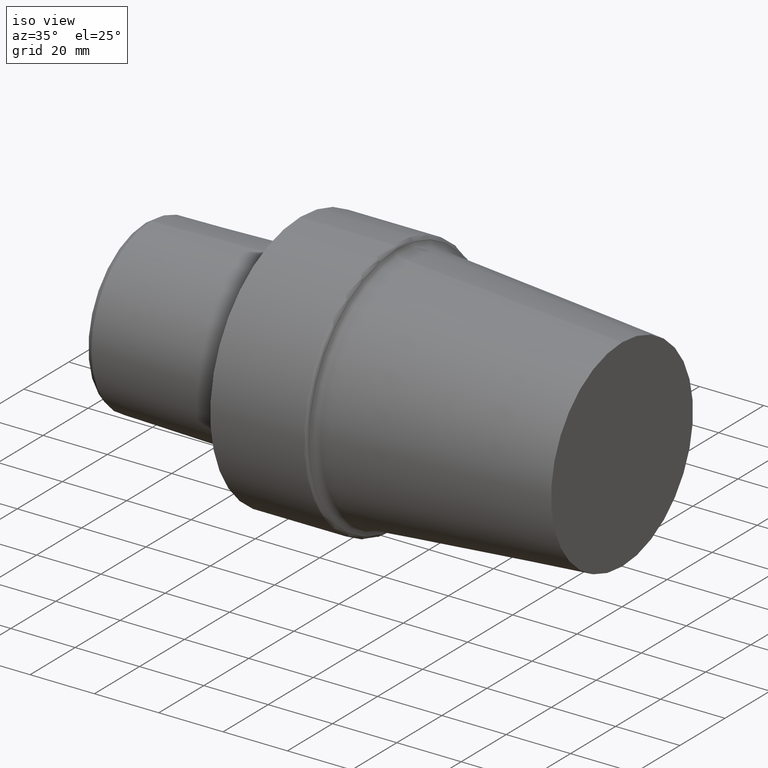
[diagram: clean part render]
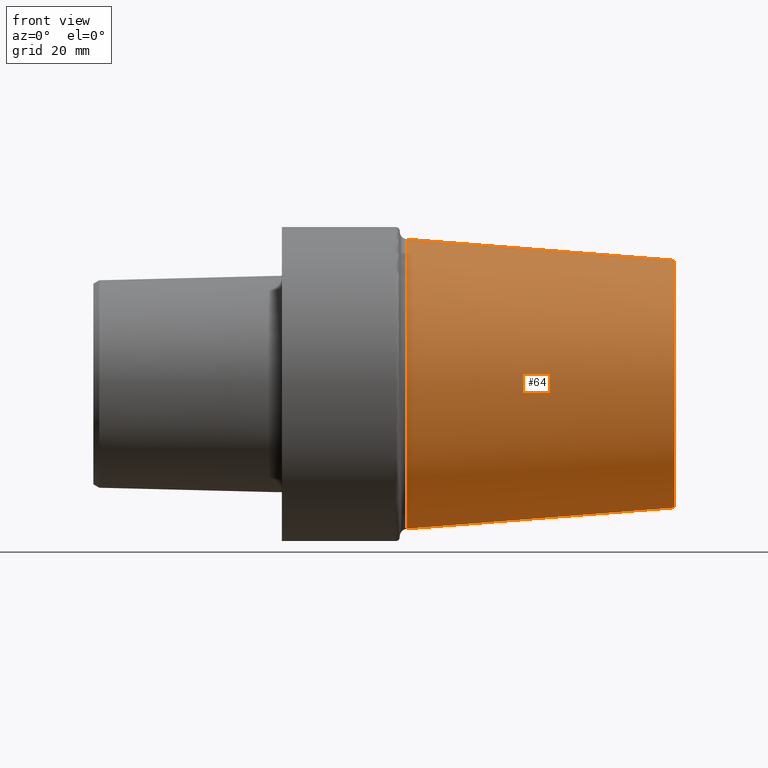
[diagram: tour spotlight — one face highlighted and labeled with its STEP entity id]
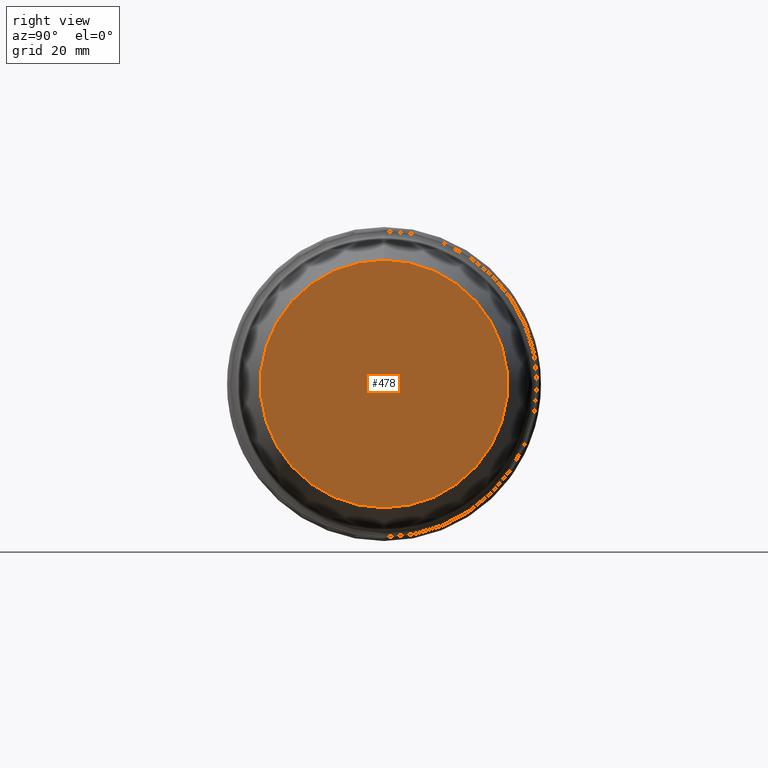
[diagram: tour spotlight — one face highlighted and labeled with its STEP entity id]
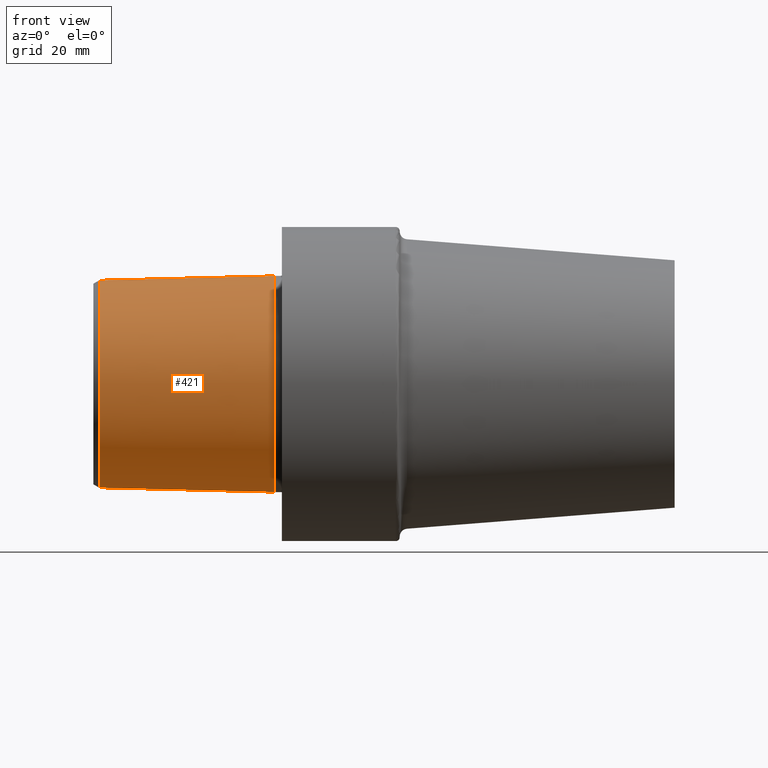
[diagram: tour spotlight — one face highlighted and labeled with its STEP entity id]
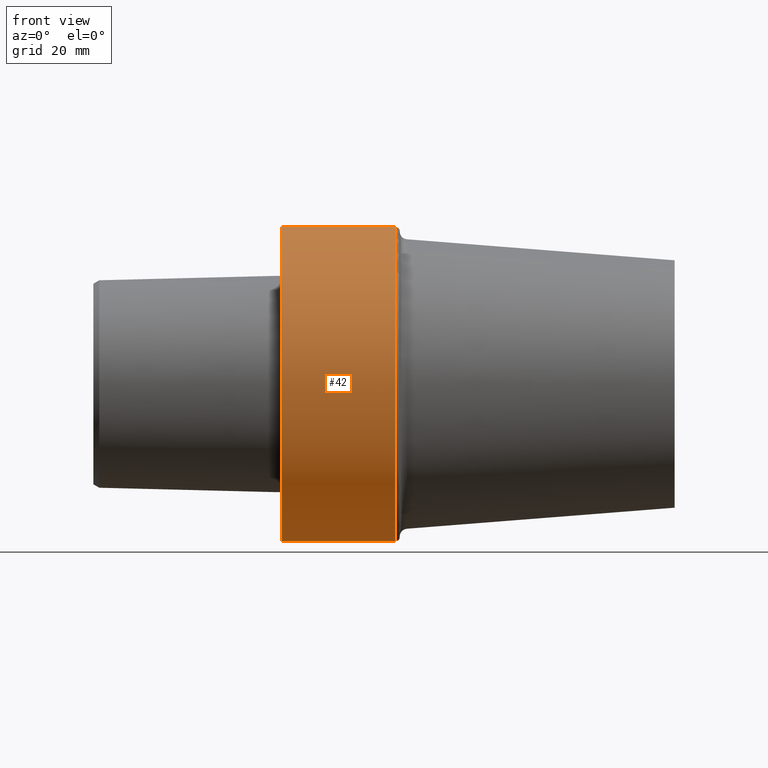
[diagram: tour spotlight — one face highlighted and labeled with its STEP entity id]
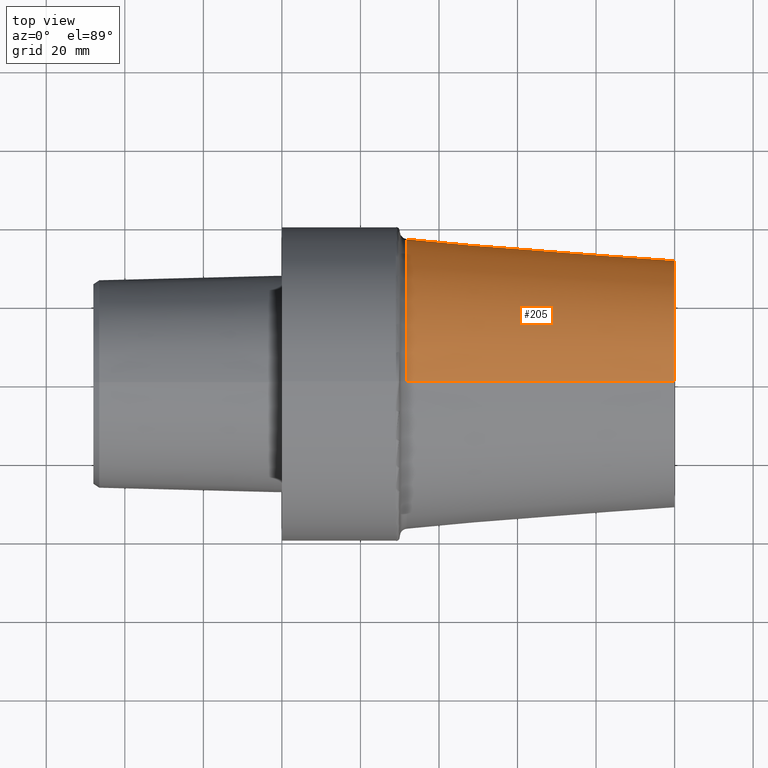
[diagram: tour spotlight — one face highlighted and labeled with its STEP entity id]
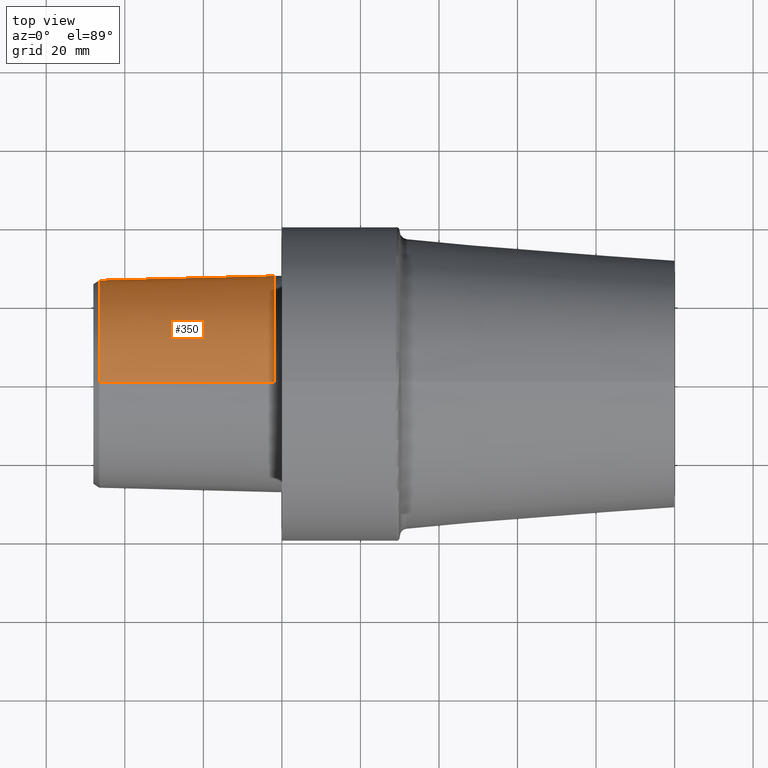
[diagram: tour spotlight — one face highlighted and labeled with its STEP entity id]
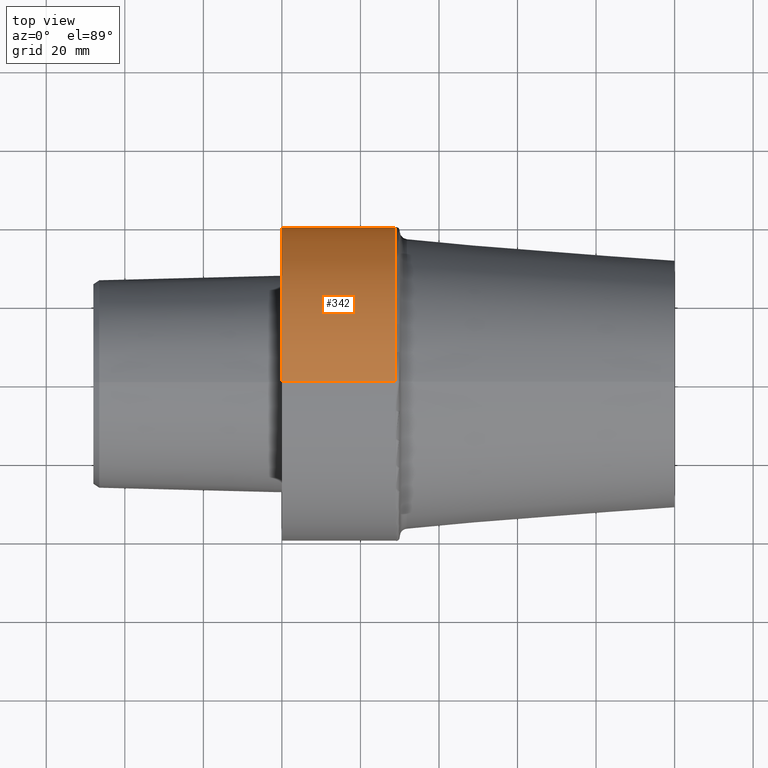
[diagram: tour spotlight — one face highlighted and labeled with its STEP entity id]
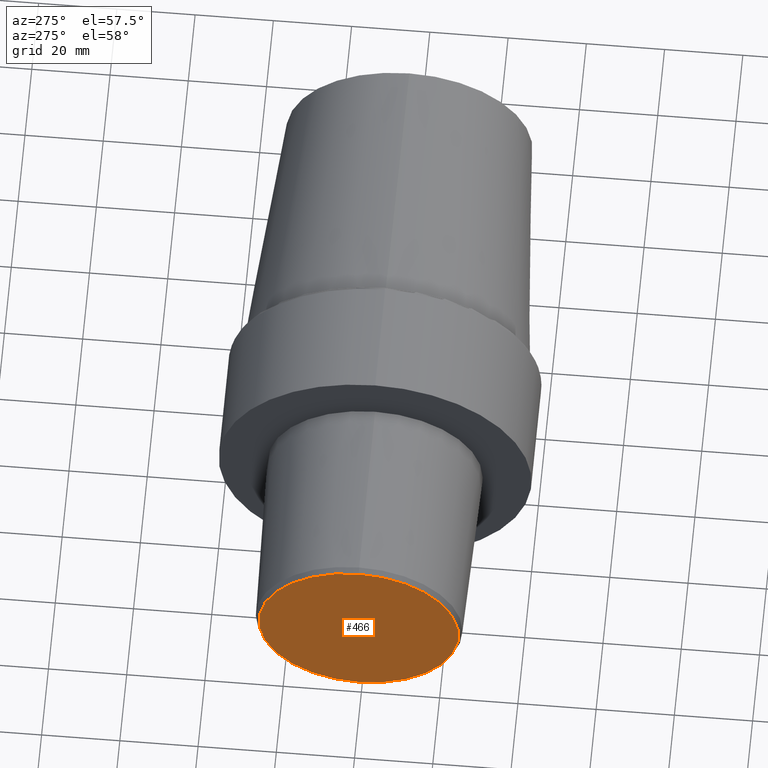
[diagram: tour spotlight — one face highlighted and labeled with its STEP entity id]
A machine part: a face-by-face anatomy tour. The part has 18 B-rep faces; the first image is the clean iso view, then the 8 largest visible faces are spotlighted one at a time (largest first), each with its STEP entity span.

Face 1 — front view, entity #64. In plain terms, the highlighted conical surface has half-angle 4.493 deg.
Definition (entity closure, byte-faithful):
#3 = CARTESIAN_POINT ( 'NONE',  ( 99.99999992069133725, 0.000000000000000000, 0.000000000000000000 ) ) ;
#17 = CARTESIAN_POINT ( 'NONE',  ( 99.99999992069133725, 3.857637413950260996E-15, -31.49999997253168615 ) ) ;
#23 = DIRECTION ( 'NONE',  ( -1.000000000000000000, 0.000000000000000000, 0.000000000000000000 ) ) ;
#37 = VECTOR ( 'NONE', #185, 1000.000000000000227 ) ;
#60 = DIRECTION ( 'NONE',  ( 0.000000000000000000, 0.000000000000000000, 1.000000000000000000 ) ) ;
#63 = CARTESIAN_POINT ( 'NONE',  ( 99.99999992069133725, 0.000000000000000000, 31.49999997253168615 ) ) ;
#64 = ADVANCED_FACE ( 'NONE', ( #188 ), #266, .T. ) ;
#65 = DIRECTION ( 'NONE',  ( -1.000000000000000000, 0.000000000000000000, 0.000000000000000000 ) ) ;
#70 = VERTEX_POINT ( 'NONE', #305 ) ;
#72 = EDGE_CURVE ( 'NONE', #91, #70, #87, .T. ) ;
#82 = ORIENTED_EDGE ( 'NONE', *, *, #72, .F. ) ;
#87 = CIRCLE ( 'NONE', #517, 36.85516611706941603 ) ;
#91 = VERTEX_POINT ( 'NONE', #181 ) ;
#106 = LINE ( 'NONE', #63, #37 ) ;
#111 = CIRCLE ( 'NONE', #258, 31.49999997253168615 ) ;
#113 = EDGE_CURVE ( 'NONE', #196, #70, #106, .T. ) ;
#117 = DIRECTION ( 'NONE',  ( -1.000000000000000000, 0.000000000000000000, 0.000000000000000000 ) ) ;
#124 = ORIENTED_EDGE ( 'NONE', *, *, #113, .T. ) ;
#145 = EDGE_CURVE ( 'NONE', #441, #196, #111, .T. ) ;
#148 = CARTESIAN_POINT ( 'NONE',  ( 31.84333994021121228, 0.000000000000000000, 0.000000000000000000 ) ) ;
#159 = DIRECTION ( 'NONE',  ( 0.000000000000000000, 0.000000000000000000, 1.000000000000000000 ) ) ;
#162 = CARTESIAN_POINT ( 'NONE',  ( 99.99999992069133725, 0.000000000000000000, 31.49999997253168615 ) ) ;
#181 = CARTESIAN_POINT ( 'NONE',  ( 31.84333994021121228, 4.513456121731304833E-15, -36.85516611706941603 ) ) ;
#185 = DIRECTION ( 'NONE',  ( -0.9969274840685427019, 0.000000000000000000, 0.07833001665240088562 ) ) ;
#188 = FACE_OUTER_BOUND ( 'NONE', #207, .T. ) ;
#196 = VERTEX_POINT ( 'NONE', #162 ) ;
#207 = EDGE_LOOP ( 'NONE', ( #445, #247, #124, #82 ) ) ;
#247 = ORIENTED_EDGE ( 'NONE', *, *, #145, .T. ) ;
#258 = AXIS2_PLACEMENT_3D ( 'NONE', #3, #117, #159 ) ;
#260 = LINE ( 'NONE', #17, #440 ) ;
#266 = CONICAL_SURFACE ( 'NONE', #346, 31.49999997253168615, 0.07841033878551205427 ) ;
#301 = DIRECTION ( 'NONE',  ( -0.9969274840685427019, 9.592660417052167740E-18, -0.07833001665240088562 ) ) ;
#305 = CARTESIAN_POINT ( 'NONE',  ( 31.84333994021121228, 0.000000000000000000, 36.85516611706941603 ) ) ;
#308 = CARTESIAN_POINT ( 'NONE',  ( 99.99999992069133725, 4.185546767840780548E-15, -31.49999997253168615 ) ) ;
#331 = EDGE_CURVE ( 'NONE', #441, #91, #260, .T. ) ;
#346 = AXIS2_PLACEMENT_3D ( 'NONE', #526, #23, #391 ) ;
#391 = DIRECTION ( 'NONE',  ( 0.000000000000000000, 0.000000000000000000, 1.000000000000000000 ) ) ;
#440 = VECTOR ( 'NONE', #301, 1000.000000000000227 ) ;
#441 = VERTEX_POINT ( 'NONE', #308 ) ;
#445 = ORIENTED_EDGE ( 'NONE', *, *, #331, .F. ) ;
#517 = AXIS2_PLACEMENT_3D ( 'NONE', #148, #65, #60 ) ;
#526 = CARTESIAN_POINT ( 'NONE',  ( 99.99999992069133725, 0.000000000000000000, 0.000000000000000000 ) ) ;

Face 2 — right view, entity #478. In plain terms, the highlighted planar face has unit normal (-1, 0, 0).
Definition (entity closure, byte-faithful):
#3 = CARTESIAN_POINT ( 'NONE',  ( 99.99999992069133725, 0.000000000000000000, 0.000000000000000000 ) ) ;
#14 = DIRECTION ( 'NONE',  ( 0.000000000000000000, 0.000000000000000000, 1.000000000000000000 ) ) ;
#25 = PLANE ( 'NONE',  #156 ) ;
#103 = FACE_OUTER_BOUND ( 'NONE', #459, .T. ) ;
#111 = CIRCLE ( 'NONE', #258, 31.49999997253168615 ) ;
#117 = DIRECTION ( 'NONE',  ( -1.000000000000000000, 0.000000000000000000, 0.000000000000000000 ) ) ;
#145 = EDGE_CURVE ( 'NONE', #441, #196, #111, .T. ) ;
#156 = AXIS2_PLACEMENT_3D ( 'NONE', #268, #523, #393 ) ;
#159 = DIRECTION ( 'NONE',  ( 0.000000000000000000, 0.000000000000000000, 1.000000000000000000 ) ) ;
#162 = CARTESIAN_POINT ( 'NONE',  ( 99.99999992069133725, 0.000000000000000000, 31.49999997253168615 ) ) ;
#196 = VERTEX_POINT ( 'NONE', #162 ) ;
#251 = CARTESIAN_POINT ( 'NONE',  ( 99.99999992069133725, 0.000000000000000000, 0.000000000000000000 ) ) ;
#258 = AXIS2_PLACEMENT_3D ( 'NONE', #3, #117, #159 ) ;
#268 = CARTESIAN_POINT ( 'NONE',  ( 99.99999992069133725, 0.000000000000000000, 0.000000000000000000 ) ) ;
#275 = EDGE_CURVE ( 'NONE', #196, #441, #472, .T. ) ;
#285 = AXIS2_PLACEMENT_3D ( 'NONE', #251, #379, #14 ) ;
#308 = CARTESIAN_POINT ( 'NONE',  ( 99.99999992069133725, 4.185546767840780548E-15, -31.49999997253168615 ) ) ;
#357 = ORIENTED_EDGE ( 'NONE', *, *, #275, .F. ) ;
#379 = DIRECTION ( 'NONE',  ( -1.000000000000000000, 0.000000000000000000, 0.000000000000000000 ) ) ;
#393 = DIRECTION ( 'NONE',  ( 0.000000000000000000, 0.000000000000000000, 1.000000000000000000 ) ) ;
#395 = ORIENTED_EDGE ( 'NONE', *, *, #145, .F. ) ;
#441 = VERTEX_POINT ( 'NONE', #308 ) ;
#459 = EDGE_LOOP ( 'NONE', ( #357, #395 ) ) ;
#472 = CIRCLE ( 'NONE', #285, 31.49999997253168615 ) ;
#478 = ADVANCED_FACE ( 'NONE', ( #103 ), #25, .F. ) ;
#523 = DIRECTION ( 'NONE',  ( -1.000000000000000000, 0.000000000000000000, 0.000000000000000000 ) ) ;

Face 3 — front view, entity #421. In plain terms, the highlighted conical surface has half-angle 1.432 deg.
Definition (entity closure, byte-faithful):
#9 = LINE ( 'NONE', #171, #318 ) ;
#11 = LINE ( 'NONE', #384, #442 ) ;
#18 = CARTESIAN_POINT ( 'NONE',  ( -46.49999994987858543, 0.000000000000000000, 0.000000000000000000 ) ) ;
#30 = EDGE_CURVE ( 'NONE', #38, #333, #9, .T. ) ;
#38 = VERTEX_POINT ( 'NONE', #420 ) ;
#46 = CIRCLE ( 'NONE', #105, 27.52650806658465399 ) ;
#49 = DIRECTION ( 'NONE',  ( 0.000000000000000000, 0.000000000000000000, 1.000000000000000000 ) ) ;
#52 = DIRECTION ( 'NONE',  ( -1.000000000000000000, 0.000000000000000000, 0.000000000000000000 ) ) ;
#55 = CARTESIAN_POINT ( 'NONE',  ( -1.940694415329066391, 0.000000000000000000, 0.000000000000000000 ) ) ;
#88 = CIRCLE ( 'NONE', #354, 26.41260027772084129 ) ;
#89 = DIRECTION ( 'NONE',  ( 0.9996876883616916398, 0.000000000000000000, -0.02499051296106793996 ) ) ;
#97 = AXIS2_PLACEMENT_3D ( 'NONE', #55, #382, #190 ) ;
#105 = AXIS2_PLACEMENT_3D ( 'NONE', #134, #52, #212 ) ;
#132 = DIRECTION ( 'NONE',  ( -1.000000000000000000, 0.000000000000000000, 0.000000000000000000 ) ) ;
#134 = CARTESIAN_POINT ( 'NONE',  ( -1.940694415329066391, 0.000000000000000000, 0.000000000000000000 ) ) ;
#171 = CARTESIAN_POINT ( 'NONE',  ( -1.940694415329066391, 3.371024999544667893E-15, 27.52650806658465399 ) ) ;
#174 = ORIENTED_EDGE ( 'NONE', *, *, #365, .T. ) ;
#190 = DIRECTION ( 'NONE',  ( 0.000000000000000000, 0.000000000000000000, -1.000000000000000000 ) ) ;
#212 = DIRECTION ( 'NONE',  ( 0.000000000000000000, 0.000000000000000000, 1.000000000000000000 ) ) ;
#241 = ORIENTED_EDGE ( 'NONE', *, *, #30, .F. ) ;
#318 = VECTOR ( 'NONE', #513, 1000.000000000000114 ) ;
#333 = VERTEX_POINT ( 'NONE', #426 ) ;
#354 = AXIS2_PLACEMENT_3D ( 'NONE', #18, #132, #49 ) ;
#358 = CARTESIAN_POINT ( 'NONE',  ( -46.49999994987858543, 0.000000000000000000, -26.41260027772084129 ) ) ;
#365 = EDGE_CURVE ( 'NONE', #470, #534, #11, .T. ) ;
#374 = EDGE_CURVE ( 'NONE', #470, #38, #88, .T. ) ;
#382 = DIRECTION ( 'NONE',  ( 1.000000000000000000, 0.000000000000000000, 0.000000000000000000 ) ) ;
#384 = CARTESIAN_POINT ( 'NONE',  ( -1.940694415329066391, 0.000000000000000000, -27.52650806658465399 ) ) ;
#401 = EDGE_CURVE ( 'NONE', #534, #333, #46, .T. ) ;
#417 = ORIENTED_EDGE ( 'NONE', *, *, #401, .T. ) ;
#420 = CARTESIAN_POINT ( 'NONE',  ( -46.49999994987858543, 3.302817819135798828E-15, 26.41260027772084129 ) ) ;
#421 = ADVANCED_FACE ( 'NONE', ( #422 ), #501, .T. ) ;
#422 = FACE_OUTER_BOUND ( 'NONE', #496, .T. ) ;
#426 = CARTESIAN_POINT ( 'NONE',  ( -1.940694415329066391, 0.000000000000000000, 27.52650806658465399 ) ) ;
#442 = VECTOR ( 'NONE', #89, 1000.000000000000114 ) ;
#470 = VERTEX_POINT ( 'NONE', #358 ) ;
#483 = CARTESIAN_POINT ( 'NONE',  ( -1.940694415329066391, 3.371024999544667893E-15, -27.52650806658465399 ) ) ;
#486 = ORIENTED_EDGE ( 'NONE', *, *, #374, .F. ) ;
#496 = EDGE_LOOP ( 'NONE', ( #241, #486, #174, #417 ) ) ;
#501 = CONICAL_SURFACE ( 'NONE', #97, 27.52650806658465399, 0.02499311489546479637 ) ;
#513 = DIRECTION ( 'NONE',  ( 0.9996876883616916398, 3.060455170682228743E-18, 0.02499051296106793996 ) ) ;
#534 = VERTEX_POINT ( 'NONE', #483 ) ;

Face 4 — front view, entity #42. In plain terms, the highlighted cylindrical surface (partial cylindrical patch) has radius 39.9925 mm, axis along (-1, 0, 0).
Definition (entity closure, byte-faithful):
#31 = ORIENTED_EDGE ( 'NONE', *, *, #352, .F. ) ;
#42 = ADVANCED_FACE ( 'NONE', ( #53 ), #214, .T. ) ;
#45 = VERTEX_POINT ( 'NONE', #223 ) ;
#53 = FACE_OUTER_BOUND ( 'NONE', #107, .T. ) ;
#100 = CARTESIAN_POINT ( 'NONE',  ( 28.99999997311141797, 4.897668707065322260E-15, -39.99249996386929951 ) ) ;
#107 = EDGE_LOOP ( 'NONE', ( #253, #291, #112, #31 ) ) ;
#112 = ORIENTED_EDGE ( 'NONE', *, *, #290, .T. ) ;
#121 = VERTEX_POINT ( 'NONE', #425 ) ;
#137 = DIRECTION ( 'NONE',  ( -1.000000000000000000, 0.000000000000000000, 0.000000000000000000 ) ) ;
#142 = CARTESIAN_POINT ( 'NONE',  ( -47.99999995507708661, 4.897668707065322260E-15, -39.99249996386929951 ) ) ;
#165 = VECTOR ( 'NONE', #137, 1000.000000000000000 ) ;
#176 = DIRECTION ( 'NONE',  ( -1.000000000000000000, 0.000000000000000000, 0.000000000000000000 ) ) ;
#177 = DIRECTION ( 'NONE',  ( -1.000000000000000000, 0.000000000000000000, 0.000000000000000000 ) ) ;
#192 = VERTEX_POINT ( 'NONE', #539 ) ;
#214 = CYLINDRICAL_SURFACE ( 'NONE', #224, 39.99249996386929951 ) ;
#223 = CARTESIAN_POINT ( 'NONE',  ( 28.99999997311141797, 0.000000000000000000, 39.99249996386929951 ) ) ;
#224 = AXIS2_PLACEMENT_3D ( 'NONE', #381, #177, #340 ) ;
#253 = ORIENTED_EDGE ( 'NONE', *, *, #491, .F. ) ;
#272 = DIRECTION ( 'NONE',  ( -1.000000000000000000, 0.000000000000000000, 0.000000000000000000 ) ) ;
#276 = AXIS2_PLACEMENT_3D ( 'NONE', #461, #176, #418 ) ;
#280 = EDGE_CURVE ( 'NONE', #287, #45, #462, .T. ) ;
#287 = VERTEX_POINT ( 'NONE', #100 ) ;
#290 = EDGE_CURVE ( 'NONE', #45, #192, #514, .T. ) ;
#291 = ORIENTED_EDGE ( 'NONE', *, *, #280, .T. ) ;
#340 = DIRECTION ( 'NONE',  ( 0.000000000000000000, 0.000000000000000000, 1.000000000000000000 ) ) ;
#341 = DIRECTION ( 'NONE',  ( -1.000000000000000000, 0.000000000000000000, 0.000000000000000000 ) ) ;
#344 = CARTESIAN_POINT ( 'NONE',  ( -47.99999995507708661, 0.000000000000000000, 39.99249996386929951 ) ) ;
#352 = EDGE_CURVE ( 'NONE', #121, #192, #518, .T. ) ;
#376 = CARTESIAN_POINT ( 'NONE',  ( 28.99999997311141797, 0.000000000000000000, 0.000000000000000000 ) ) ;
#381 = CARTESIAN_POINT ( 'NONE',  ( -47.99999995507708661, 0.000000000000000000, 0.000000000000000000 ) ) ;
#386 = LINE ( 'NONE', #142, #389 ) ;
#389 = VECTOR ( 'NONE', #272, 1000.000000000000000 ) ;
#394 = AXIS2_PLACEMENT_3D ( 'NONE', #376, #341, #465 ) ;
#418 = DIRECTION ( 'NONE',  ( 0.000000000000000000, 0.000000000000000000, 1.000000000000000000 ) ) ;
#425 = CARTESIAN_POINT ( 'NONE',  ( 2.691416640612785863E-09, 4.897668707065322260E-15, -39.99249996386929951 ) ) ;
#461 = CARTESIAN_POINT ( 'NONE',  ( 2.691416640612785863E-09, 0.000000000000000000, 0.000000000000000000 ) ) ;
#462 = CIRCLE ( 'NONE', #394, 39.99249996386929951 ) ;
#465 = DIRECTION ( 'NONE',  ( 0.000000000000000000, 0.000000000000000000, 1.000000000000000000 ) ) ;
#491 = EDGE_CURVE ( 'NONE', #287, #121, #386, .T. ) ;
#514 = LINE ( 'NONE', #344, #165 ) ;
#518 = CIRCLE ( 'NONE', #276, 39.99249996386929951 ) ;
#539 = CARTESIAN_POINT ( 'NONE',  ( 2.691416640612785863E-09, 0.000000000000000000, 39.99249996386929951 ) ) ;

Face 5 — top view, entity #205. In plain terms, the highlighted conical surface has half-angle 4.493 deg.
Definition (entity closure, byte-faithful):
#14 = DIRECTION ( 'NONE',  ( 0.000000000000000000, 0.000000000000000000, 1.000000000000000000 ) ) ;
#17 = CARTESIAN_POINT ( 'NONE',  ( 99.99999992069133725, 3.857637413950260996E-15, -31.49999997253168615 ) ) ;
#37 = VECTOR ( 'NONE', #185, 1000.000000000000227 ) ;
#63 = CARTESIAN_POINT ( 'NONE',  ( 99.99999992069133725, 0.000000000000000000, 31.49999997253168615 ) ) ;
#70 = VERTEX_POINT ( 'NONE', #305 ) ;
#84 = EDGE_LOOP ( 'NONE', ( #503, #467, #237, #537 ) ) ;
#91 = VERTEX_POINT ( 'NONE', #181 ) ;
#106 = LINE ( 'NONE', #63, #37 ) ;
#113 = EDGE_CURVE ( 'NONE', #196, #70, #106, .T. ) ;
#162 = CARTESIAN_POINT ( 'NONE',  ( 99.99999992069133725, 0.000000000000000000, 31.49999997253168615 ) ) ;
#166 = AXIS2_PLACEMENT_3D ( 'NONE', #437, #477, #351 ) ;
#181 = CARTESIAN_POINT ( 'NONE',  ( 31.84333994021121228, 4.513456121731304833E-15, -36.85516611706941603 ) ) ;
#185 = DIRECTION ( 'NONE',  ( -0.9969274840685427019, 0.000000000000000000, 0.07833001665240088562 ) ) ;
#196 = VERTEX_POINT ( 'NONE', #162 ) ;
#205 = ADVANCED_FACE ( 'NONE', ( #498 ), #309, .T. ) ;
#237 = ORIENTED_EDGE ( 'NONE', *, *, #524, .F. ) ;
#243 = CARTESIAN_POINT ( 'NONE',  ( 99.99999992069133725, 0.000000000000000000, 0.000000000000000000 ) ) ;
#249 = AXIS2_PLACEMENT_3D ( 'NONE', #243, #475, #335 ) ;
#251 = CARTESIAN_POINT ( 'NONE',  ( 99.99999992069133725, 0.000000000000000000, 0.000000000000000000 ) ) ;
#260 = LINE ( 'NONE', #17, #440 ) ;
#275 = EDGE_CURVE ( 'NONE', #196, #441, #472, .T. ) ;
#285 = AXIS2_PLACEMENT_3D ( 'NONE', #251, #379, #14 ) ;
#295 = CIRCLE ( 'NONE', #166, 36.85516611706941603 ) ;
#301 = DIRECTION ( 'NONE',  ( -0.9969274840685427019, 9.592660417052167740E-18, -0.07833001665240088562 ) ) ;
#305 = CARTESIAN_POINT ( 'NONE',  ( 31.84333994021121228, 0.000000000000000000, 36.85516611706941603 ) ) ;
#308 = CARTESIAN_POINT ( 'NONE',  ( 99.99999992069133725, 4.185546767840780548E-15, -31.49999997253168615 ) ) ;
#309 = CONICAL_SURFACE ( 'NONE', #249, 31.49999997253168615, 0.07841033878551205427 ) ;
#331 = EDGE_CURVE ( 'NONE', #441, #91, #260, .T. ) ;
#335 = DIRECTION ( 'NONE',  ( 0.000000000000000000, 0.000000000000000000, 1.000000000000000000 ) ) ;
#351 = DIRECTION ( 'NONE',  ( 0.000000000000000000, 0.000000000000000000, 1.000000000000000000 ) ) ;
#379 = DIRECTION ( 'NONE',  ( -1.000000000000000000, 0.000000000000000000, 0.000000000000000000 ) ) ;
#437 = CARTESIAN_POINT ( 'NONE',  ( 31.84333994021121228, 0.000000000000000000, 0.000000000000000000 ) ) ;
#440 = VECTOR ( 'NONE', #301, 1000.000000000000227 ) ;
#441 = VERTEX_POINT ( 'NONE', #308 ) ;
#467 = ORIENTED_EDGE ( 'NONE', *, *, #331, .T. ) ;
#472 = CIRCLE ( 'NONE', #285, 31.49999997253168615 ) ;
#475 = DIRECTION ( 'NONE',  ( -1.000000000000000000, 0.000000000000000000, 0.000000000000000000 ) ) ;
#477 = DIRECTION ( 'NONE',  ( -1.000000000000000000, 0.000000000000000000, 0.000000000000000000 ) ) ;
#498 = FACE_OUTER_BOUND ( 'NONE', #84, .T. ) ;
#503 = ORIENTED_EDGE ( 'NONE', *, *, #275, .T. ) ;
#524 = EDGE_CURVE ( 'NONE', #70, #91, #295, .T. ) ;
#537 = ORIENTED_EDGE ( 'NONE', *, *, #113, .F. ) ;

Face 6 — top view, entity #350. In plain terms, the highlighted conical surface has half-angle 1.432 deg.
Definition (entity closure, byte-faithful):
#9 = LINE ( 'NONE', #171, #318 ) ;
#11 = LINE ( 'NONE', #384, #442 ) ;
#21 = AXIS2_PLACEMENT_3D ( 'NONE', #451, #123, #447 ) ;
#30 = EDGE_CURVE ( 'NONE', #38, #333, #9, .T. ) ;
#38 = VERTEX_POINT ( 'NONE', #420 ) ;
#43 = ORIENTED_EDGE ( 'NONE', *, *, #30, .T. ) ;
#54 = AXIS2_PLACEMENT_3D ( 'NONE', #332, #297, #96 ) ;
#73 = EDGE_LOOP ( 'NONE', ( #409, #43, #489, #149 ) ) ;
#89 = DIRECTION ( 'NONE',  ( 0.9996876883616916398, 0.000000000000000000, -0.02499051296106793996 ) ) ;
#96 = DIRECTION ( 'NONE',  ( 0.000000000000000000, 0.000000000000000000, 1.000000000000000000 ) ) ;
#123 = DIRECTION ( 'NONE',  ( -1.000000000000000000, 0.000000000000000000, 0.000000000000000000 ) ) ;
#139 = FACE_OUTER_BOUND ( 'NONE', #73, .T. ) ;
#147 = CIRCLE ( 'NONE', #54, 27.52650806658465399 ) ;
#149 = ORIENTED_EDGE ( 'NONE', *, *, #365, .F. ) ;
#150 = EDGE_CURVE ( 'NONE', #38, #470, #387, .T. ) ;
#171 = CARTESIAN_POINT ( 'NONE',  ( -1.940694415329066391, 3.371024999544667893E-15, 27.52650806658465399 ) ) ;
#172 = DIRECTION ( 'NONE',  ( 1.000000000000000000, 0.000000000000000000, 0.000000000000000000 ) ) ;
#175 = AXIS2_PLACEMENT_3D ( 'NONE', #219, #172, #512 ) ;
#219 = CARTESIAN_POINT ( 'NONE',  ( -1.940694415329066391, 0.000000000000000000, 0.000000000000000000 ) ) ;
#246 = EDGE_CURVE ( 'NONE', #333, #534, #147, .T. ) ;
#297 = DIRECTION ( 'NONE',  ( -1.000000000000000000, 0.000000000000000000, 0.000000000000000000 ) ) ;
#318 = VECTOR ( 'NONE', #513, 1000.000000000000114 ) ;
#332 = CARTESIAN_POINT ( 'NONE',  ( -1.940694415329066391, 0.000000000000000000, 0.000000000000000000 ) ) ;
#333 = VERTEX_POINT ( 'NONE', #426 ) ;
#350 = ADVANCED_FACE ( 'NONE', ( #139 ), #535, .T. ) ;
#358 = CARTESIAN_POINT ( 'NONE',  ( -46.49999994987858543, 0.000000000000000000, -26.41260027772084129 ) ) ;
#365 = EDGE_CURVE ( 'NONE', #470, #534, #11, .T. ) ;
#384 = CARTESIAN_POINT ( 'NONE',  ( -1.940694415329066391, 0.000000000000000000, -27.52650806658465399 ) ) ;
#387 = CIRCLE ( 'NONE', #21, 26.41260027772084129 ) ;
#409 = ORIENTED_EDGE ( 'NONE', *, *, #150, .F. ) ;
#420 = CARTESIAN_POINT ( 'NONE',  ( -46.49999994987858543, 3.302817819135798828E-15, 26.41260027772084129 ) ) ;
#426 = CARTESIAN_POINT ( 'NONE',  ( -1.940694415329066391, 0.000000000000000000, 27.52650806658465399 ) ) ;
#442 = VECTOR ( 'NONE', #89, 1000.000000000000114 ) ;
#447 = DIRECTION ( 'NONE',  ( 0.000000000000000000, 0.000000000000000000, 1.000000000000000000 ) ) ;
#451 = CARTESIAN_POINT ( 'NONE',  ( -46.49999994987858543, 0.000000000000000000, 0.000000000000000000 ) ) ;
#470 = VERTEX_POINT ( 'NONE', #358 ) ;
#483 = CARTESIAN_POINT ( 'NONE',  ( -1.940694415329066391, 3.371024999544667893E-15, -27.52650806658465399 ) ) ;
#489 = ORIENTED_EDGE ( 'NONE', *, *, #246, .T. ) ;
#512 = DIRECTION ( 'NONE',  ( 0.000000000000000000, 0.000000000000000000, -1.000000000000000000 ) ) ;
#513 = DIRECTION ( 'NONE',  ( 0.9996876883616916398, 3.060455170682228743E-18, 0.02499051296106793996 ) ) ;
#534 = VERTEX_POINT ( 'NONE', #483 ) ;
#535 = CONICAL_SURFACE ( 'NONE', #175, 27.52650806658465399, 0.02499311489546479637 ) ;

Face 7 — top view, entity #342. In plain terms, the highlighted cylindrical surface (partial cylindrical patch) has radius 39.9925 mm, axis along (-1, 0, 0).
Definition (entity closure, byte-faithful):
#4 = ORIENTED_EDGE ( 'NONE', *, *, #316, .F. ) ;
#45 = VERTEX_POINT ( 'NONE', #223 ) ;
#68 = CIRCLE ( 'NONE', #371, 39.99249996386929951 ) ;
#81 = CARTESIAN_POINT ( 'NONE',  ( 28.99999997311141797, 0.000000000000000000, 0.000000000000000000 ) ) ;
#100 = CARTESIAN_POINT ( 'NONE',  ( 28.99999997311141797, 4.897668707065322260E-15, -39.99249996386929951 ) ) ;
#121 = VERTEX_POINT ( 'NONE', #425 ) ;
#137 = DIRECTION ( 'NONE',  ( -1.000000000000000000, 0.000000000000000000, 0.000000000000000000 ) ) ;
#142 = CARTESIAN_POINT ( 'NONE',  ( -47.99999995507708661, 4.897668707065322260E-15, -39.99249996386929951 ) ) ;
#155 = CIRCLE ( 'NONE', #198, 39.99249996386929951 ) ;
#165 = VECTOR ( 'NONE', #137, 1000.000000000000000 ) ;
#170 = DIRECTION ( 'NONE',  ( 0.000000000000000000, 0.000000000000000000, 1.000000000000000000 ) ) ;
#180 = EDGE_CURVE ( 'NONE', #45, #287, #155, .T. ) ;
#192 = VERTEX_POINT ( 'NONE', #539 ) ;
#198 = AXIS2_PLACEMENT_3D ( 'NONE', #81, #289, #400 ) ;
#211 = ORIENTED_EDGE ( 'NONE', *, *, #491, .T. ) ;
#217 = DIRECTION ( 'NONE',  ( -1.000000000000000000, 0.000000000000000000, 0.000000000000000000 ) ) ;
#223 = CARTESIAN_POINT ( 'NONE',  ( 28.99999997311141797, 0.000000000000000000, 39.99249996386929951 ) ) ;
#236 = ORIENTED_EDGE ( 'NONE', *, *, #180, .T. ) ;
#254 = CARTESIAN_POINT ( 'NONE',  ( -47.99999995507708661, 0.000000000000000000, 0.000000000000000000 ) ) ;
#257 = CARTESIAN_POINT ( 'NONE',  ( 2.691416640612785863E-09, 0.000000000000000000, 0.000000000000000000 ) ) ;
#272 = DIRECTION ( 'NONE',  ( -1.000000000000000000, 0.000000000000000000, 0.000000000000000000 ) ) ;
#287 = VERTEX_POINT ( 'NONE', #100 ) ;
#289 = DIRECTION ( 'NONE',  ( -1.000000000000000000, 0.000000000000000000, 0.000000000000000000 ) ) ;
#290 = EDGE_CURVE ( 'NONE', #45, #192, #514, .T. ) ;
#316 = EDGE_CURVE ( 'NONE', #192, #121, #68, .T. ) ;
#326 = ORIENTED_EDGE ( 'NONE', *, *, #290, .F. ) ;
#342 = ADVANCED_FACE ( 'NONE', ( #516 ), #471, .T. ) ;
#344 = CARTESIAN_POINT ( 'NONE',  ( -47.99999995507708661, 0.000000000000000000, 39.99249996386929951 ) ) ;
#371 = AXIS2_PLACEMENT_3D ( 'NONE', #257, #217, #170 ) ;
#375 = EDGE_LOOP ( 'NONE', ( #236, #211, #4, #326 ) ) ;
#386 = LINE ( 'NONE', #142, #389 ) ;
#389 = VECTOR ( 'NONE', #272, 1000.000000000000000 ) ;
#400 = DIRECTION ( 'NONE',  ( 0.000000000000000000, 0.000000000000000000, 1.000000000000000000 ) ) ;
#411 = AXIS2_PLACEMENT_3D ( 'NONE', #254, #508, #505 ) ;
#425 = CARTESIAN_POINT ( 'NONE',  ( 2.691416640612785863E-09, 4.897668707065322260E-15, -39.99249996386929951 ) ) ;
#471 = CYLINDRICAL_SURFACE ( 'NONE', #411, 39.99249996386929951 ) ;
#491 = EDGE_CURVE ( 'NONE', #287, #121, #386, .T. ) ;
#505 = DIRECTION ( 'NONE',  ( 0.000000000000000000, 0.000000000000000000, 1.000000000000000000 ) ) ;
#508 = DIRECTION ( 'NONE',  ( -1.000000000000000000, 0.000000000000000000, 0.000000000000000000 ) ) ;
#514 = LINE ( 'NONE', #344, #165 ) ;
#516 = FACE_OUTER_BOUND ( 'NONE', #375, .T. ) ;
#539 = CARTESIAN_POINT ( 'NONE',  ( 2.691416640612785863E-09, 0.000000000000000000, 39.99249996386929951 ) ) ;

Face 8 — auxiliary view, entity #466. In plain terms, the highlighted planar face has unit normal (1, 0, 0).
Definition (entity closure, byte-faithful):
#8 = CARTESIAN_POINT ( 'NONE',  ( -47.99999995507708661, 0.000000000000000000, 0.000000000000000000 ) ) ;
#20 = CARTESIAN_POINT ( 'NONE',  ( -47.99999995507708661, 25.54657487093501445, 0.000000000000000000 ) ) ;
#27 = CIRCLE ( 'NONE', #525, 25.54657487093501445 ) ;
#40 = ORIENTED_EDGE ( 'NONE', *, *, #76, .T. ) ;
#76 = EDGE_CURVE ( 'NONE', #363, #130, #173, .T. ) ;
#98 = CARTESIAN_POINT ( 'NONE',  ( -47.99999995507708661, 3.181581876606904120E-15, 25.54657487093501445 ) ) ;
#128 = DIRECTION ( 'NONE',  ( -1.000000000000000000, 0.000000000000000000, 0.000000000000000000 ) ) ;
#130 = VERTEX_POINT ( 'NONE', #98 ) ;
#160 = EDGE_LOOP ( 'NONE', ( #40, #529 ) ) ;
#173 = CIRCLE ( 'NONE', #423, 25.54657487093501445 ) ;
#193 = FACE_OUTER_BOUND ( 'NONE', #160, .T. ) ;
#221 = PLANE ( 'NONE',  #413 ) ;
#252 = EDGE_CURVE ( 'NONE', #130, #363, #27, .T. ) ;
#343 = CARTESIAN_POINT ( 'NONE',  ( -47.99999995507708661, 0.000000000000000000, 0.000000000000000000 ) ) ;
#363 = VERTEX_POINT ( 'NONE', #416 ) ;
#373 = DIRECTION ( 'NONE',  ( 0.000000000000000000, 0.000000000000000000, 1.000000000000000000 ) ) ;
#383 = DIRECTION ( 'NONE',  ( -1.000000000000000000, 0.000000000000000000, 0.000000000000000000 ) ) ;
#413 = AXIS2_PLACEMENT_3D ( 'NONE', #20, #427, #430 ) ;
#416 = CARTESIAN_POINT ( 'NONE',  ( -47.99999995507708661, 0.000000000000000000, -25.54657487093501445 ) ) ;
#423 = AXIS2_PLACEMENT_3D ( 'NONE', #343, #383, #515 ) ;
#427 = DIRECTION ( 'NONE',  ( 1.000000000000000000, 0.000000000000000000, 0.000000000000000000 ) ) ;
#430 = DIRECTION ( 'NONE',  ( 0.000000000000000000, 1.000000000000000000, 0.000000000000000000 ) ) ;
#466 = ADVANCED_FACE ( 'NONE', ( #193 ), #221, .F. ) ;
#515 = DIRECTION ( 'NONE',  ( 0.000000000000000000, 0.000000000000000000, 1.000000000000000000 ) ) ;
#525 = AXIS2_PLACEMENT_3D ( 'NONE', #8, #128, #373 ) ;
#529 = ORIENTED_EDGE ( 'NONE', *, *, #252, .T. ) ;